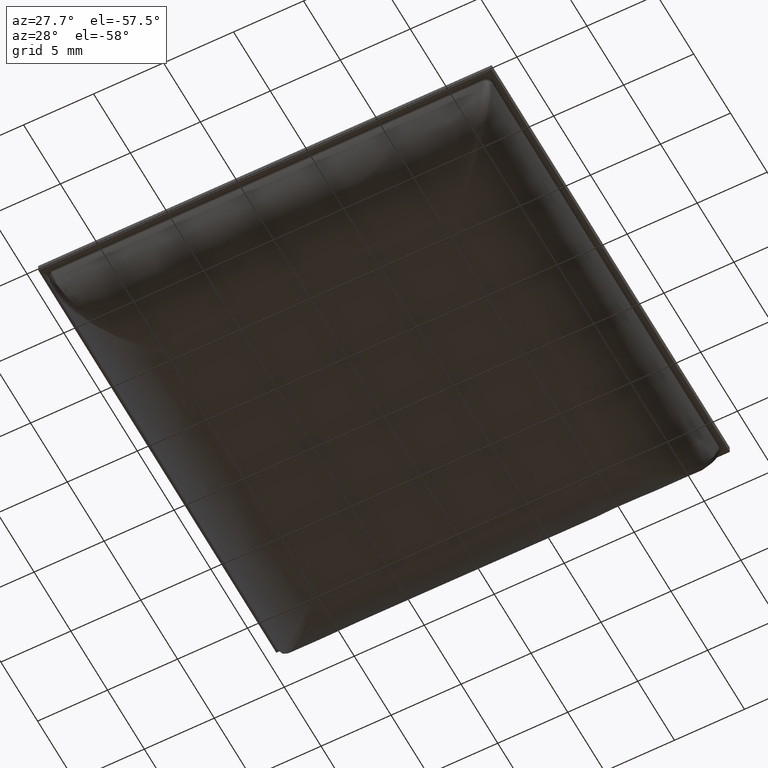
[diagram: clean part render]
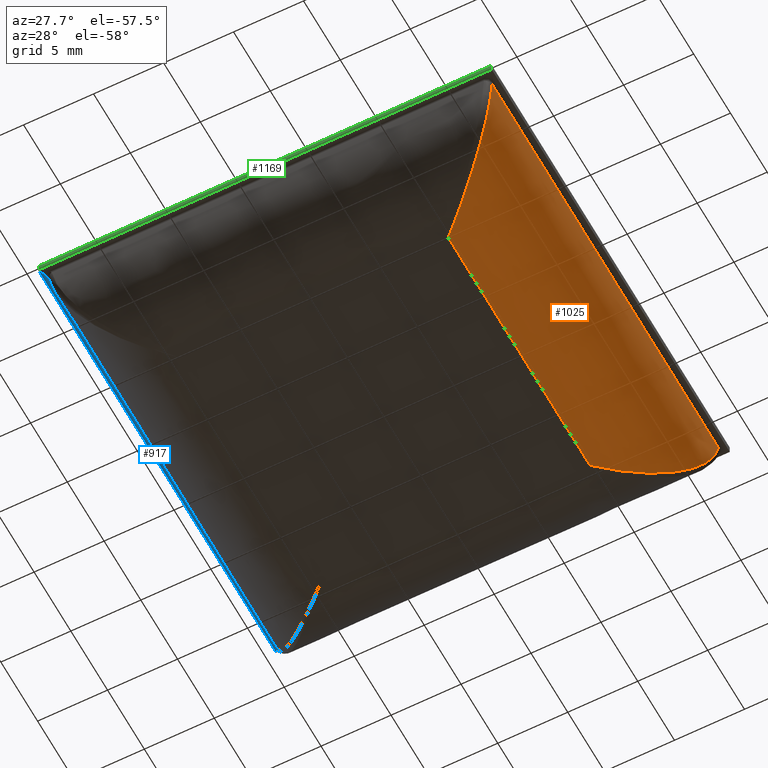
[diagram: same view with three faces highlighted in distinct colors, each labeled with its STEP entity id]
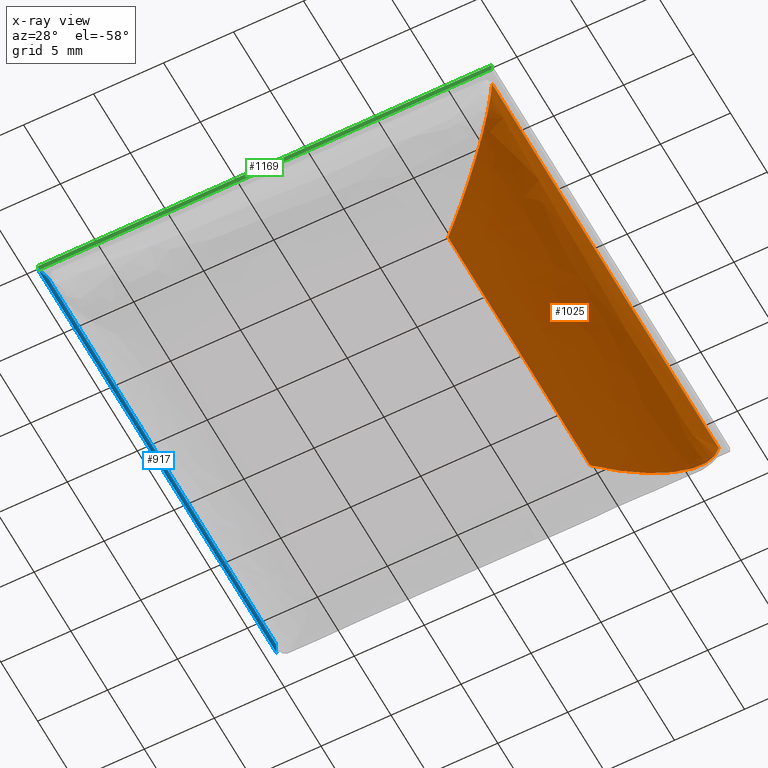
[diagram: x-ray of the same camera — body ghosted, the three highlighted faces saturated]
A machine part, auxiliary view with three faces highlighted in distinct colors.
The next image is the same camera in x-ray (body ghosted, the three faces saturated) — at least one of them is partly hidden behind the body in this view.
Their STEP definitions:

[orange] entity #1025 — the highlighted face is a freeform B-spline surface patch.
#112=CARTESIAN_POINT('',(15.815050445656150,15.417305255613901,5.542616548341090));
#113=VERTEX_POINT('',#112);
#216=CARTESIAN_POINT('',(9.650000000000000,9.650000000000000,0.0));
#217=VERTEX_POINT('',#216);
#218=CARTESIAN_POINT('',(9.649999999999999,9.649999999999999,0.0));
#219=CARTESIAN_POINT('',(15.224037536696898,14.864422211748701,0.0));
#220=CARTESIAN_POINT('',(15.815050445656150,15.417305255613901,5.542616548341090));
#228=(BOUNDED_CURVE()B_SPLINE_CURVE(2,(#218,#219,#220),.UNSPECIFIED.,.F.,.U.)CURVE()GEOMETRIC_REPRESENTATION_ITEM()QUASI_UNIFORM_CURVE()RATIONAL_B_SPLINE_CURVE((1.0,0.743649644986526,1.0))REPRESENTATION_ITEM(''));
#229=EDGE_CURVE('',#217,#113,#228,.T.);
#342=CARTESIAN_POINT('',(15.815050445656150,-15.417305255613901,5.542616548341090));
#343=VERTEX_POINT('',#342);
#420=CARTESIAN_POINT('',(9.650000000000000,-9.650000000000000,0.0));
#421=VERTEX_POINT('',#420);
#435=CARTESIAN_POINT('',(15.815050445656150,-15.417305255613901,5.542616548341090));
#436=CARTESIAN_POINT('',(15.224037536696899,-14.864422211748703,0.0));
#437=CARTESIAN_POINT('',(9.650000000000000,-9.650000000000000,0.0));
#445=(BOUNDED_CURVE()B_SPLINE_CURVE(2,(#435,#436,#437),.UNSPECIFIED.,.F.,.U.)CURVE()GEOMETRIC_REPRESENTATION_ITEM()QUASI_UNIFORM_CURVE()RATIONAL_B_SPLINE_CURVE((1.0,0.743649644986526,1.0))REPRESENTATION_ITEM(''));
#446=EDGE_CURVE('',#343,#421,#445,.T.);
#967=CARTESIAN_POINT('',(15.815050445656150,15.417305255613901,5.542616548341090));
#968=CARTESIAN_POINT('',(15.815050445656150,-15.417305255613901,5.542616548341090));
#969=QUASI_UNIFORM_CURVE('',1,(#967,#968),.UNSPECIFIED.,.F.,.U.);
#970=EDGE_CURVE('',#113,#343,#969,.T.);
#1001=CARTESIAN_POINT('',(15.830887469145390,16.188170518394600,5.713553606487365));
#1002=CARTESIAN_POINT('',(15.830887469145390,-16.207442149964120,5.713553606487365));
#1003=CARTESIAN_POINT('',(15.350219010258121,16.188170518394593,-0.393918242355888));
#1004=CARTESIAN_POINT('',(15.350219010258121,-16.207442149964113,-0.393918242355888));
#1005=CARTESIAN_POINT('',(9.237439930036233,16.188170518394600,0.013741503245161));
#1006=CARTESIAN_POINT('',(9.237439930036233,-16.207442149964120,0.013741503245161));
#1014=(BOUNDED_SURFACE()B_SPLINE_SURFACE(1,2,((#1001,#1003,#1005),(#1002,#1004,#1006)),.UNSPECIFIED.,.F.,.F.,.U.)B_SPLINE_SURFACE_WITH_KNOTS((2,2),(3,3),(0.0,32.395612668358723),(0.0,10.185793288056029),.UNSPECIFIED.)GEOMETRIC_REPRESENTATION_ITEM()RATIONAL_B_SPLINE_SURFACE(((1.0,0.709575351338497,0.995104471028858),(1.0,0.709575351338497,0.995104471028858)))REPRESENTATION_ITEM('')SURFACE());
#1015=ORIENTED_EDGE('',*,*,#970,.T.);
#1016=ORIENTED_EDGE('',*,*,#446,.T.);
#1017=CARTESIAN_POINT('',(9.650000000000000,9.650000000000000,0.0));
#1018=CARTESIAN_POINT('',(9.650000000000000,-9.650000000000000,0.0));
#1019=QUASI_UNIFORM_CURVE('',1,(#1017,#1018),.UNSPECIFIED.,.F.,.U.);
#1020=EDGE_CURVE('',#217,#421,#1019,.T.);
#1021=ORIENTED_EDGE('',*,*,#1020,.F.);
#1022=ORIENTED_EDGE('',*,*,#229,.T.);
#1023=EDGE_LOOP('',(#1015,#1016,#1021,#1022));
#1024=FACE_OUTER_BOUND('',#1023,.T.);
#1025=ADVANCED_FACE('',(#1024),#1014,.T.);

[blue] entity #917 — the highlighted face is a freeform B-spline surface patch.
#520=CARTESIAN_POINT('',(-16.199999999999999,-16.187204364301301,5.899999999999889));
#521=VERTEX_POINT('',#520);
#531=CARTESIAN_POINT('',(-15.815050445656150,-15.417305255613901,5.542616548341080));
#532=VERTEX_POINT('',#531);
#533=CARTESIAN_POINT('',(-15.815050445656150,-15.417305255613901,5.542616548341080));
#534=CARTESIAN_POINT('',(-15.851970740166387,-15.491145844634211,5.888861160290455));
#535=CARTESIAN_POINT('',(-16.199999999999999,-16.187204364301301,5.899999999999889));
#543=(BOUNDED_CURVE()B_SPLINE_CURVE(2,(#533,#534,#535),.UNSPECIFIED.,.F.,.U.)CURVE()GEOMETRIC_REPRESENTATION_ITEM()QUASI_UNIFORM_CURVE()RATIONAL_B_SPLINE_CURVE((1.0,0.754249325790332,1.0))REPRESENTATION_ITEM(''));
#544=EDGE_CURVE('',#532,#521,#543,.T.);
#750=CARTESIAN_POINT('',(-15.815050445656150,15.417305255613901,5.542616548341080));
#751=VERTEX_POINT('',#750);
#765=CARTESIAN_POINT('',(-16.199999999999999,16.187204364303302,5.899999999999889));
#766=VERTEX_POINT('',#765);
#767=CARTESIAN_POINT('',(-16.199999999999999,16.187204364303302,5.899999999999889));
#768=CARTESIAN_POINT('',(-15.851970740166191,15.491145844633909,5.888861160291109));
#769=CARTESIAN_POINT('',(-15.815050445656150,15.417305255613901,5.542616548341080));
#777=(BOUNDED_CURVE()B_SPLINE_CURVE(2,(#767,#768,#769),.UNSPECIFIED.,.F.,.U.)CURVE()GEOMETRIC_REPRESENTATION_ITEM()QUASI_UNIFORM_CURVE()RATIONAL_B_SPLINE_CURVE((1.0,0.754249325789466,1.0))REPRESENTATION_ITEM(''));
#778=EDGE_CURVE('',#766,#751,#777,.T.);
#889=CARTESIAN_POINT('',(-16.210469805312840,16.996564582518410,5.900197950834297));
#890=CARTESIAN_POINT('',(-16.210469805312840,-17.016798587971788,5.900197950834297));
#891=CARTESIAN_POINT('',(-15.830890395445477,16.996564582518410,5.897990820210119));
#892=CARTESIAN_POINT('',(-15.830890395445477,-17.016798587971785,5.897990820210119));
#893=CARTESIAN_POINT('',(-15.813228849888290,16.996564582518410,5.518816098440079));
#894=CARTESIAN_POINT('',(-15.813228849888290,-17.016798587971788,5.518816098440079));
#902=(BOUNDED_SURFACE()B_SPLINE_SURFACE(1,2,((#889,#891,#893),(#890,#892,#894)),.UNSPECIFIED.,.F.,.F.,.U.)B_SPLINE_SURFACE_WITH_KNOTS((2,2),(3,3),(0.0,34.013363170490187),(0.0,1.0),.UNSPECIFIED.)GEOMETRIC_REPRESENTATION_ITEM()RATIONAL_B_SPLINE_SURFACE(((1.0,0.725374371012288,1.0),(1.0,0.725374371012288,1.0)))REPRESENTATION_ITEM('')SURFACE());
#903=CARTESIAN_POINT('',(-16.199999999999999,-16.187204364301301,5.899999999999889));
#904=CARTESIAN_POINT('',(-16.199999999999999,16.187204364303302,5.899999999999889));
#905=QUASI_UNIFORM_CURVE('',1,(#903,#904),.UNSPECIFIED.,.F.,.U.);
#906=EDGE_CURVE('',#521,#766,#905,.T.);
#907=ORIENTED_EDGE('',*,*,#906,.T.);
#908=ORIENTED_EDGE('',*,*,#778,.T.);
#909=CARTESIAN_POINT('',(-15.815050445656150,-15.417305255613901,5.542616548341080));
#910=CARTESIAN_POINT('',(-15.815050445656150,15.417305255613901,5.542616548341080));
#911=QUASI_UNIFORM_CURVE('',1,(#909,#910),.UNSPECIFIED.,.F.,.U.);
#912=EDGE_CURVE('',#532,#751,#911,.T.);
#913=ORIENTED_EDGE('',*,*,#912,.F.);
#914=ORIENTED_EDGE('',*,*,#544,.T.);
#915=EDGE_LOOP('',(#907,#908,#913,#914));
#916=FACE_OUTER_BOUND('',#915,.T.);
#917=ADVANCED_FACE('',(#916),#902,.F.);

[green] entity #1169 — the highlighted face is a freeform B-spline surface patch.
#316=CARTESIAN_POINT('',(16.187204364301500,-16.199999999999999,5.899999999999889));
#317=VERTEX_POINT('',#316);
#318=CARTESIAN_POINT('',(16.199999999999999,-16.199999999999999,5.900068254402150));
#319=VERTEX_POINT('',#318);
#320=CARTESIAN_POINT('',(16.187204364301500,-16.199999999999999,5.899999999999900));
#321=CARTESIAN_POINT('',(16.191469636880939,-16.199999999999999,5.899999999999900));
#322=CARTESIAN_POINT('',(16.195734970009781,-16.199999999999999,5.900022764189828));
#323=CARTESIAN_POINT('',(16.199999999999999,-16.199999999999999,5.900068254402150));
#324=B_SPLINE_CURVE_WITH_KNOTS('',3,(#320,#321,#322,#323),.UNSPECIFIED.,.F.,.U.,(4,4),(0.0,0.000012795817738),.UNSPECIFIED.);
#325=EDGE_CURVE('',#317,#319,#324,.T.);
#522=CARTESIAN_POINT('',(-16.199999999999999,-16.199999999999999,5.900068254402041));
#523=VERTEX_POINT('',#522);
#561=CARTESIAN_POINT('',(-16.187204364303899,-16.199999999999999,5.899999999999889));
#562=VERTEX_POINT('',#561);
#576=CARTESIAN_POINT('',(-16.199999999999999,-16.199999999999999,5.900068254402041));
#577=CARTESIAN_POINT('',(-16.195734970010580,-16.199999999999999,5.900022764189816));
#578=CARTESIAN_POINT('',(-16.191469636882541,-16.199999999999999,5.899999999999897));
#579=CARTESIAN_POINT('',(-16.187204364303899,-16.199999999999999,5.899999999999889));
#580=B_SPLINE_CURVE_WITH_KNOTS('',3,(#576,#577,#578,#579),.UNSPECIFIED.,.F.,.U.,(4,4),(0.0,0.000012795817736),.UNSPECIFIED.);
#581=EDGE_CURVE('',#523,#562,#580,.T.);
#932=CARTESIAN_POINT('',(-16.187204364303899,-16.199999999999999,5.899999999999889));
#933=CARTESIAN_POINT('',(16.187204364301500,-16.199999999999999,5.899999999999889));
#934=QUASI_UNIFORM_CURVE('',1,(#932,#933),.UNSPECIFIED.,.F.,.U.);
#935=EDGE_CURVE('',#562,#317,#934,.T.);
#1083=CARTESIAN_POINT('',(16.199999999999999,-16.199999999999999,6.400000000000000));
#1084=VERTEX_POINT('',#1083);
#1097=CARTESIAN_POINT('',(-16.199999999999999,-16.199999999999999,6.400000000000000));
#1098=VERTEX_POINT('',#1097);
#1104=CARTESIAN_POINT('',(16.199999999999999,-16.199999999999999,6.400000000000000));
#1105=CARTESIAN_POINT('',(-16.199999999999999,-16.199999999999999,6.400000000000000));
#1106=QUASI_UNIFORM_CURVE('',1,(#1104,#1105),.UNSPECIFIED.,.F.,.U.);
#1107=EDGE_CURVE('',#1084,#1098,#1106,.T.);
#1143=CARTESIAN_POINT('',(-16.199999999999999,-16.199999999999999,6.400000000000000));
#1144=CARTESIAN_POINT('',(-16.199999999999999,-16.199999999999999,5.900068254402041));
#1145=QUASI_UNIFORM_CURVE('',1,(#1143,#1144),.UNSPECIFIED.,.F.,.U.);
#1146=EDGE_CURVE('',#1098,#523,#1145,.T.);
#1152=CARTESIAN_POINT('',(-17.818380849646569,-16.199999999999999,6.424975096931987));
#1153=CARTESIAN_POINT('',(-17.818380849646569,-16.199999999999999,5.875025095292884));
#1154=CARTESIAN_POINT('',(17.818380849646569,-16.199999999999999,6.424975096931986));
#1155=CARTESIAN_POINT('',(17.818380849646569,-16.199999999999999,5.875025095292884));
#1156=B_SPLINE_SURFACE_WITH_KNOTS('',1,1,((#1152,#1154),(#1153,#1155)),.UNSPECIFIED.,.F.,.F.,.U.,(2,2),(2,2),(0.041708171780035,0.958291507844999),(0.0,35.636761699293132),.UNSPECIFIED.);
#1157=ORIENTED_EDGE('',*,*,#1146,.T.);
#1158=ORIENTED_EDGE('',*,*,#581,.T.);
#1159=ORIENTED_EDGE('',*,*,#935,.T.);
#1160=ORIENTED_EDGE('',*,*,#325,.T.);
#1161=CARTESIAN_POINT('',(16.199999999999999,-16.199999999999999,6.400000000000000));
#1162=CARTESIAN_POINT('',(16.199999999999999,-16.199999999999999,5.900068254402150));
#1163=QUASI_UNIFORM_CURVE('',1,(#1161,#1162),.UNSPECIFIED.,.F.,.U.);
#1164=EDGE_CURVE('',#1084,#319,#1163,.T.);
#1165=ORIENTED_EDGE('',*,*,#1164,.F.);
#1166=ORIENTED_EDGE('',*,*,#1107,.T.);
#1167=EDGE_LOOP('',(#1157,#1158,#1159,#1160,#1165,#1166));
#1168=FACE_OUTER_BOUND('',#1167,.T.);
#1169=ADVANCED_FACE('',(#1168),#1156,.T.);